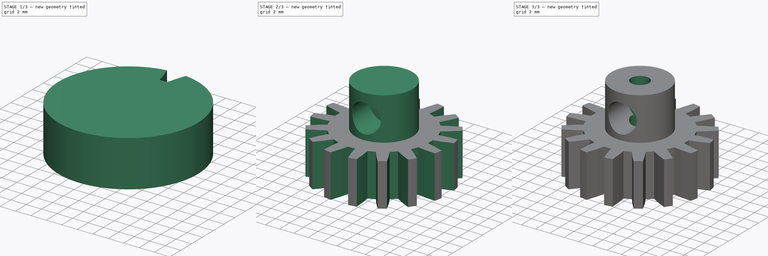
[diagram: build sequence overview — one tinted view per stage of 3, left to right]
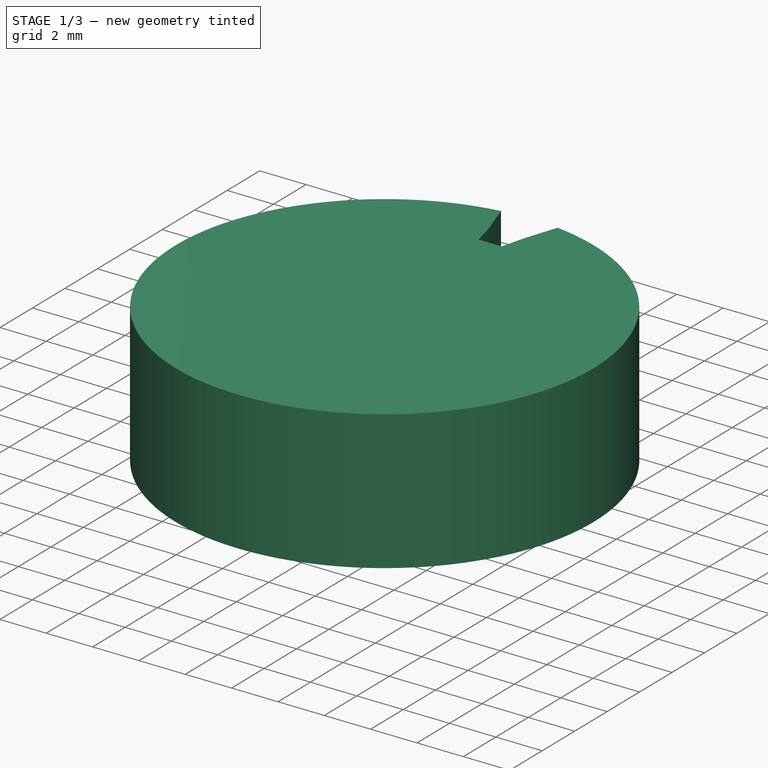
[diagram: stage 1 of 3 — iso view after this stage's code; geometry added in this stage tinted green]
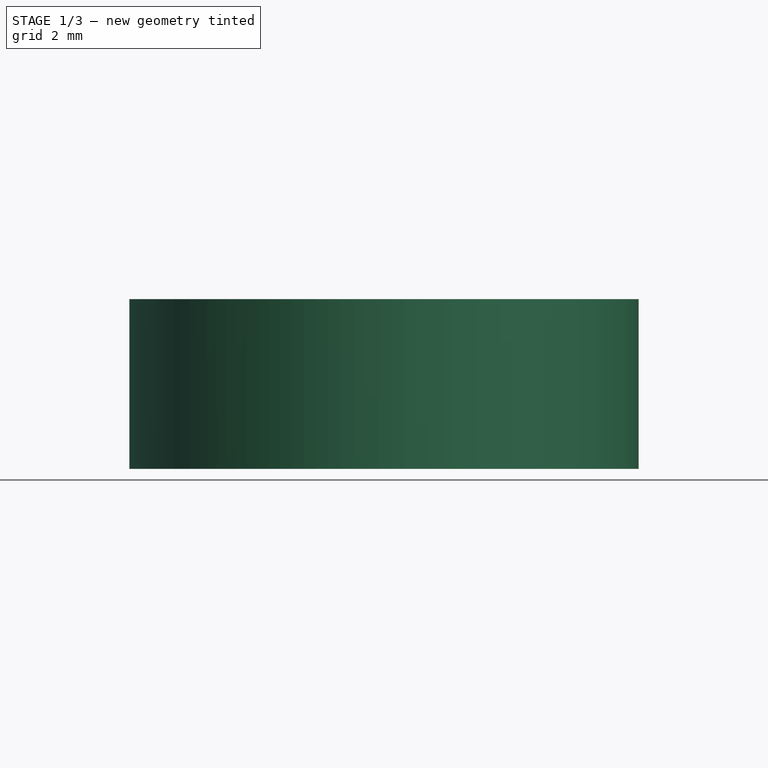
[diagram: stage 1 of 3 — front view after this stage's code; geometry added in this stage tinted green]
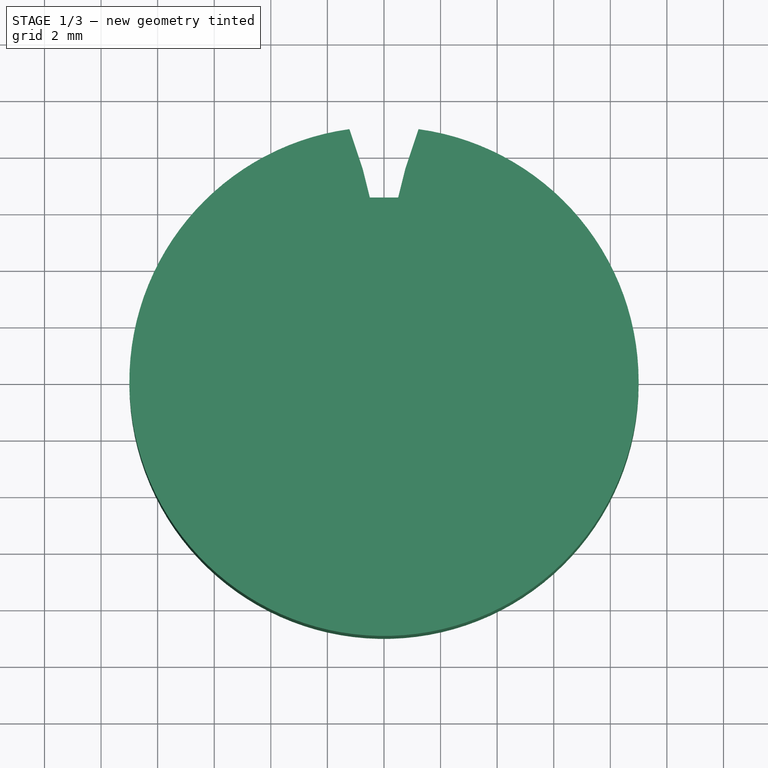
[diagram: stage 1 of 3 — top view after this stage's code; geometry added in this stage tinted green]
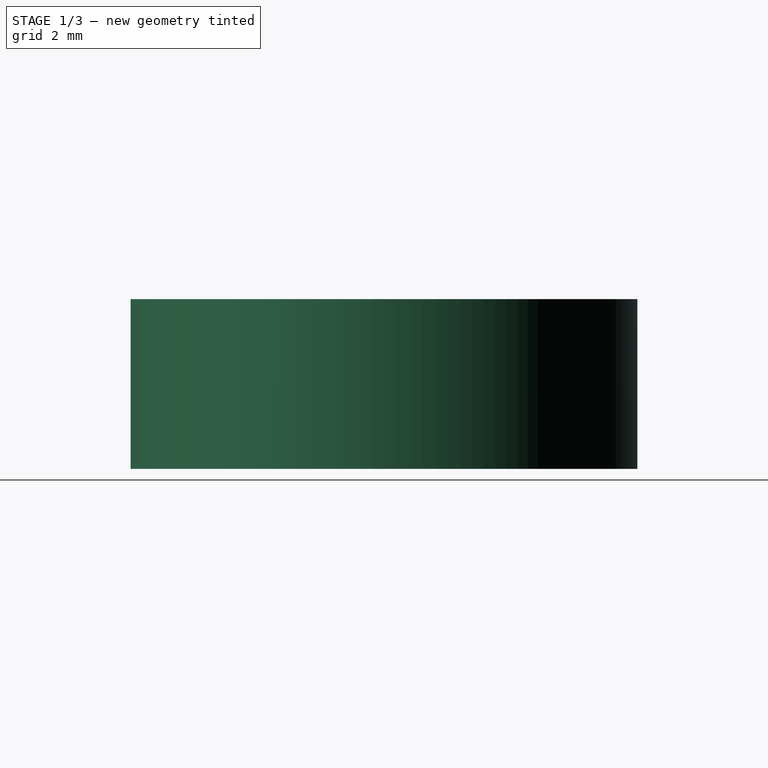
[diagram: stage 1 of 3 — right view after this stage's code; geometry added in this stage tinted green]
FCSTD DOCUMENT  (FreeCAD 0.18R4 (GitTag))
Label: Motor_Gear
License: All rights reserved
LicenseURL: http://en.wikipedia.org/wiki/All_rights_reserved
objects: Sketcher::SketchObject×5, PartDesign::Pocket×4, PartDesign::Pad×2, PartDesign::PolarPattern×1, PartDesign::Body×1
note: 19 computed .brp shape members not serialized (recipe doc carries the construction recipe); baked Part::Feature solids carry a one-line shape summary decoded from their .brp

FEATURE [Sketcher::SketchObject] Sketch
  MapMode = 5
  Support = -> [XY_Plane]
  sketch-geometry (1):
    g0: Circle CenterX=0 CenterY=0 CenterZ=0 NormalX=0 NormalY=0 NormalZ=1 AngleXU=0 Radius=9
  constraints (2):
    c: Radius(g0) = 9
    c: Coincident(g0,g-1)
FEATURE [PartDesign::Pad] Pad
  Length = 6
  Length2 = 100
  Profile = -> Sketch
  Reversed = true
  Type = 0
FEATURE [Sketcher::SketchObject] Sketch001
  ExternalGeometry = -> [Pad]
  MapMode = 5
  Support = -> [Pad]
  sketch-geometry (9):
    g0: LineSegment [constr] StartX=0 StartY=0 StartZ=0 EndX=0 EndY=9 EndZ=0
    g1: LineSegment StartX=-0.5 StartY=6.5 StartZ=0 EndX=0.5 EndY=6.5 EndZ=0
    g2: LineSegment [constr] StartX=-0.75 StartY=7.5 StartZ=0 EndX=0.75 EndY=7.5 EndZ=0
    g3: LineSegment [constr] StartX=-1.25 StartY=9 StartZ=0 EndX=1.25 EndY=9 EndZ=0
    g4: LineSegment StartX=-0.5 StartY=6.5 StartZ=0 EndX=-0.75 EndY=7.5 EndZ=0
    g5: LineSegment StartX=-0.75 StartY=7.5 StartZ=0 EndX=-1.25 EndY=9 EndZ=0
    g6: LineSegment StartX=-1.25 StartY=9 StartZ=0 EndX=1.25 EndY=9 EndZ=0
    g7: LineSegment StartX=1.25 StartY=9 StartZ=0 EndX=0.75 EndY=7.5 EndZ=0
    g8: LineSegment StartX=0.75 StartY=7.5 StartZ=0 EndX=0.5 EndY=6.5 EndZ=0
  constraints (22):
    c: PointOnObject(g0,g-2)
    c: Coincident(g0,g-1)
    c: Symmetric(g1,g1,g0)
    c: DistanceX(g1,g1) = 1
    c: Symmetric(g2,g2,g0)
    c: DistanceY(g1,g2) = 1
    c: DistanceX(g2,g2) = 1.5
    c: Symmetric(g3,g3,g0)
    c: PointOnObject(g0,g3)
    c: DistanceX(g3,g3) = 2.5
    c: Coincident(g4,g1)
    c: Coincident(g4,g5)
    c: Coincident(g4,g2)
    c: Coincident(g6,g5)
    c: Coincident(g6,g3)
    c: Coincident(g6,g3)
    c: Coincident(g6,g7)
    c: Coincident(g7,g2)
    c: Coincident(g7,g8)
    c: Coincident(g8,g1)
    c: DistanceY(g1,g0) = 2.5
    c: PointOnObject(g0,g-3)
FEATURE [Sketcher::SketchObject] Sketch002
  MapMode = 5
  sketch-geometry (1):
    g0: Circle CenterX=0 CenterY=0 CenterZ=0 NormalX=0 NormalY=0 NormalZ=1 AngleXU=0 Radius=4
  constraints (2):
    c: Coincident(g0,g-1)
    c: Radius(g0) = 4
FEATURE [Sketcher::SketchObject] Sketch004
  MapMode = 5
  Placement = pos=(0,0,0) rot=(1,0,0;1.5708rad)
  Support = -> [XZ_Plane]
  sketch-geometry (1):
    g0: Circle CenterX=0 CenterY=2.75 CenterZ=0 NormalX=0 NormalY=0 NormalZ=1 AngleXU=0 Radius=2
  constraints (3):
    c: PointOnObject(g0,g-2)
    c: Radius(g0) = 2
    c: DistanceY(g-1,g0) = 2.75
FEATURE [PartDesign::Pocket] Pocket
  BaseFeature = -> Pad
  Length = 6
  Length2 = 100
  Profile = -> Sketch001
  Type = 0
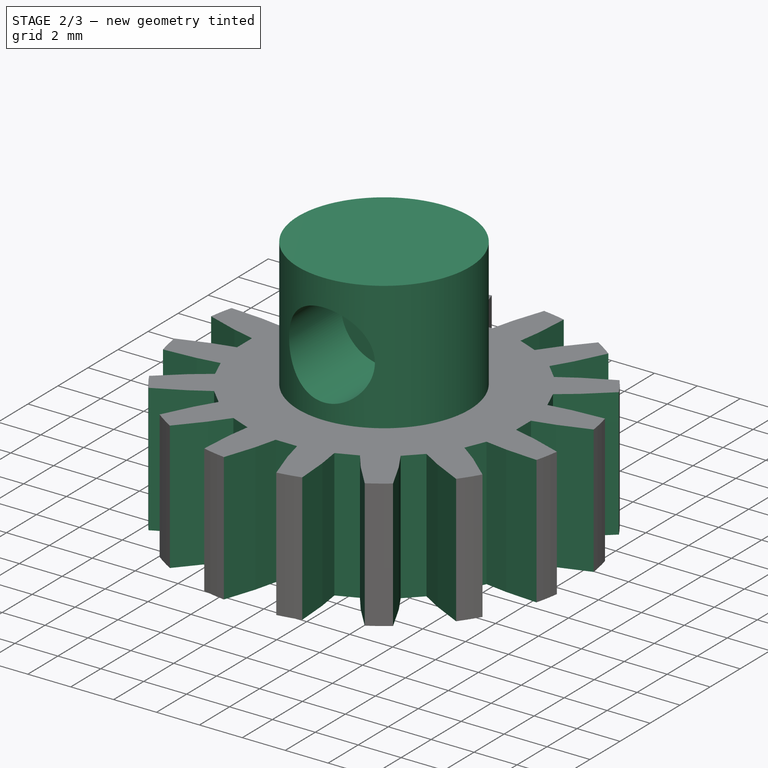
[diagram: stage 2 of 3 — iso view after this stage's code; geometry added in this stage tinted green]
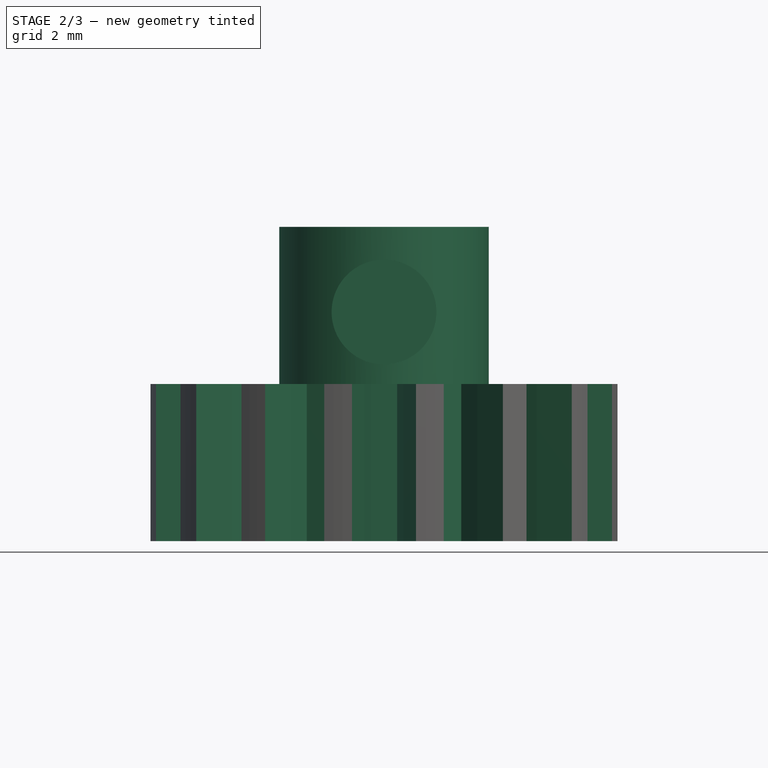
[diagram: stage 2 of 3 — front view after this stage's code; geometry added in this stage tinted green]
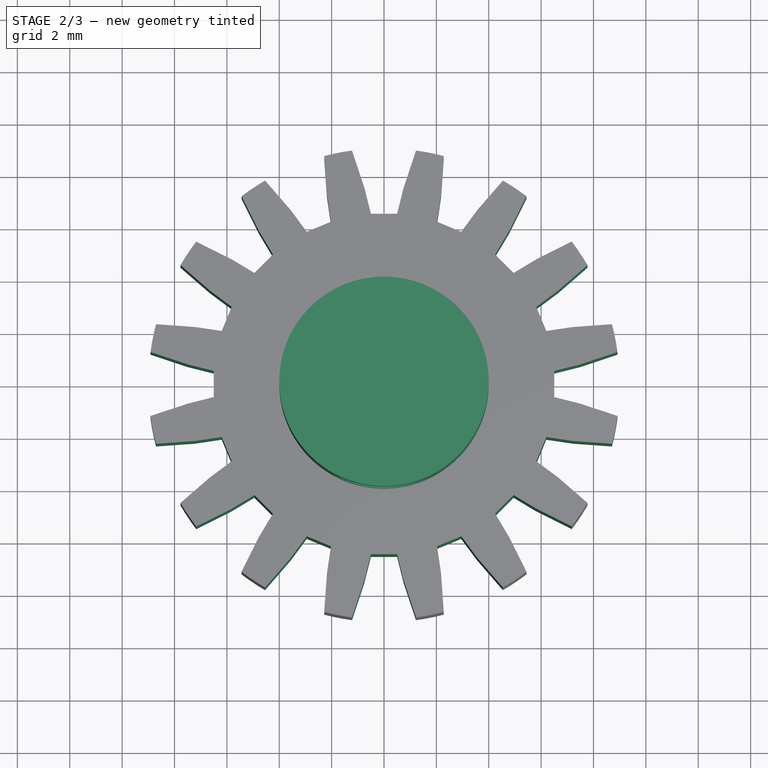
[diagram: stage 2 of 3 — top view after this stage's code; geometry added in this stage tinted green]
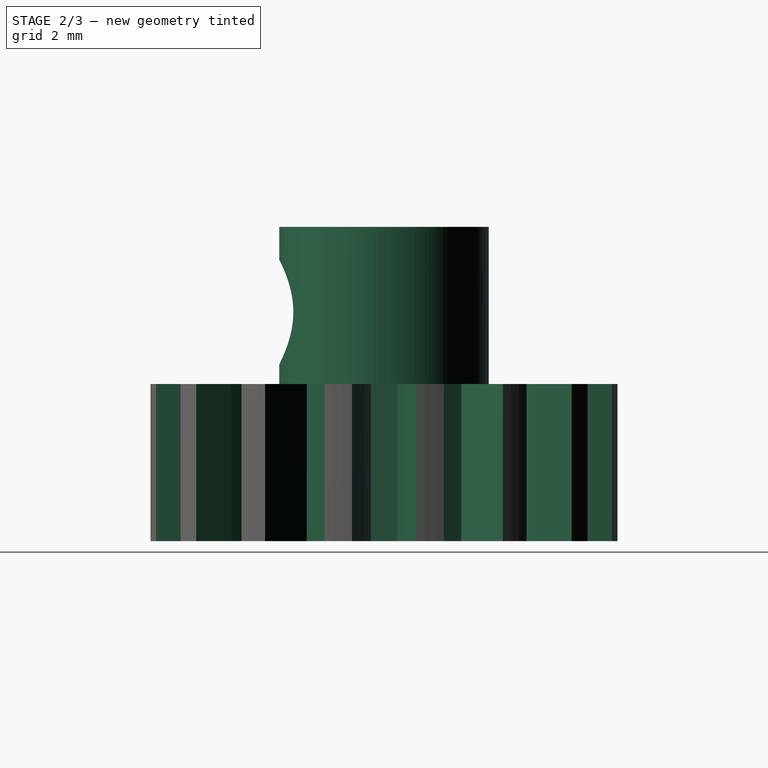
[diagram: stage 2 of 3 — right view after this stage's code; geometry added in this stage tinted green]
FEATURE [PartDesign::PolarPattern] PolarPattern
  Angle = 360
  Axis = -> Sketch001 [N_Axis]
  BaseFeature = -> Pocket
  Occurrences = 16
  Originals = -> [Pocket]
FEATURE [PartDesign::Pad] Pad001
  BaseFeature = -> PolarPattern
  Length = 6
  Length2 = 100
  Profile = -> Sketch002
  Refine = true
  Type = 0
FEATURE [Sketcher::SketchObject] Sketch003
  MapMode = 5
  Placement = pos=(0,0,6) rot=(0,0,1;0rad)
  Support = -> [Pad001]
  sketch-geometry (1):
    g0: Circle CenterX=0 CenterY=0 CenterZ=0 NormalX=0 NormalY=0 NormalZ=1 AngleXU=0 Radius=1.25
  constraints (2):
    c: Coincident(g0,g-1)
    c: Radius(g0) = 1.25
FEATURE [PartDesign::Pocket] Pocket002
  BaseFeature = -> Pad001
  Length = 5
  Length2 = 100
  Profile = -> Sketch004
  Refine = true
  Reversed = true
  Type = 0
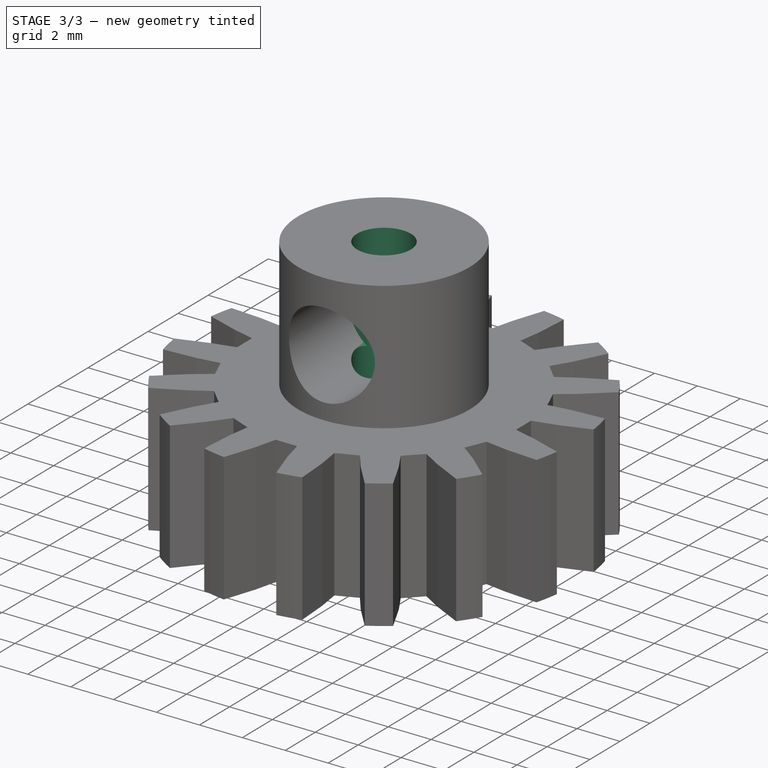
[diagram: stage 3 of 3 — iso view after this stage's code; geometry added in this stage tinted green]
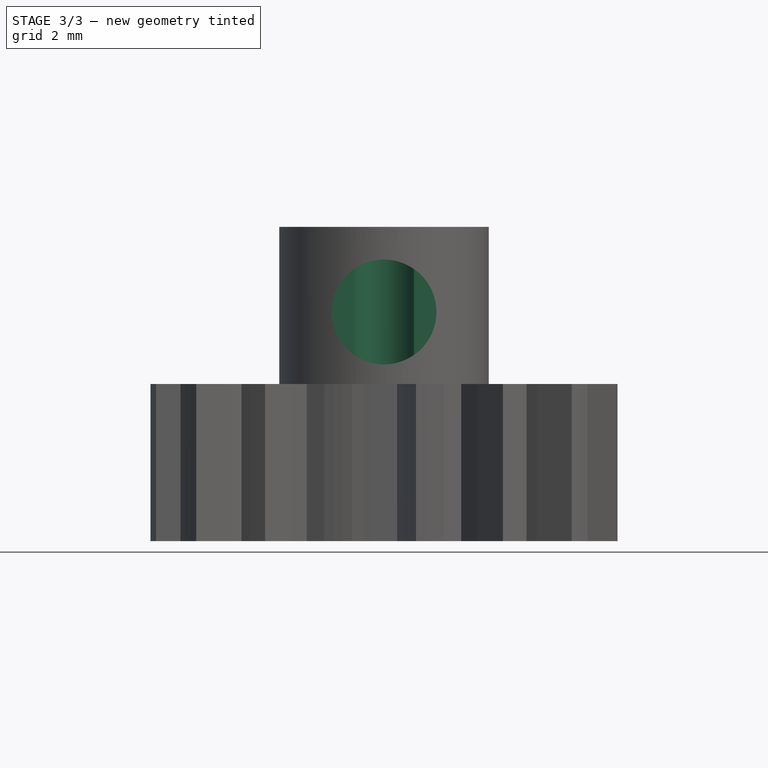
[diagram: stage 3 of 3 — front view after this stage's code; geometry added in this stage tinted green]
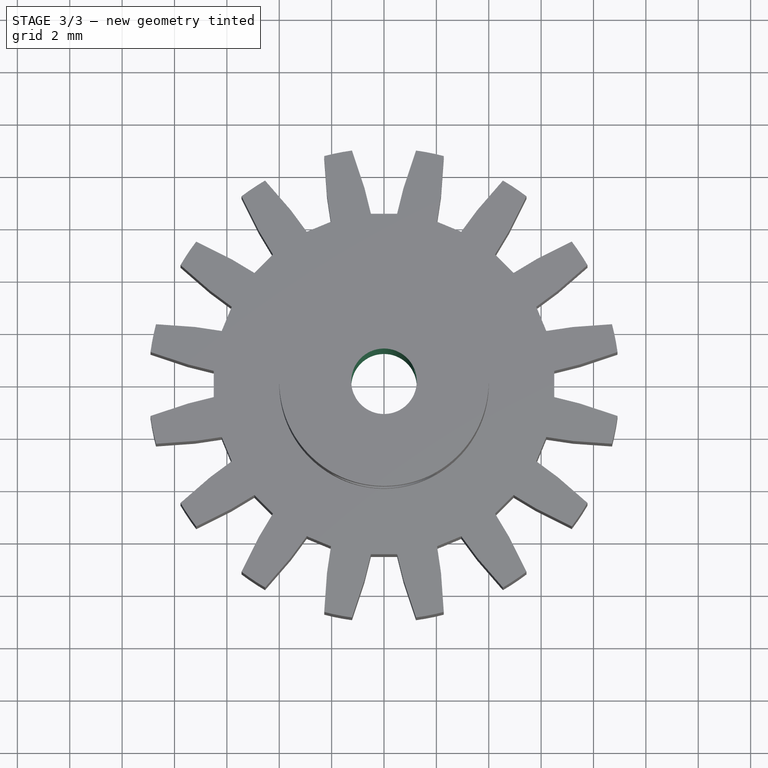
[diagram: stage 3 of 3 — top view after this stage's code; geometry added in this stage tinted green]
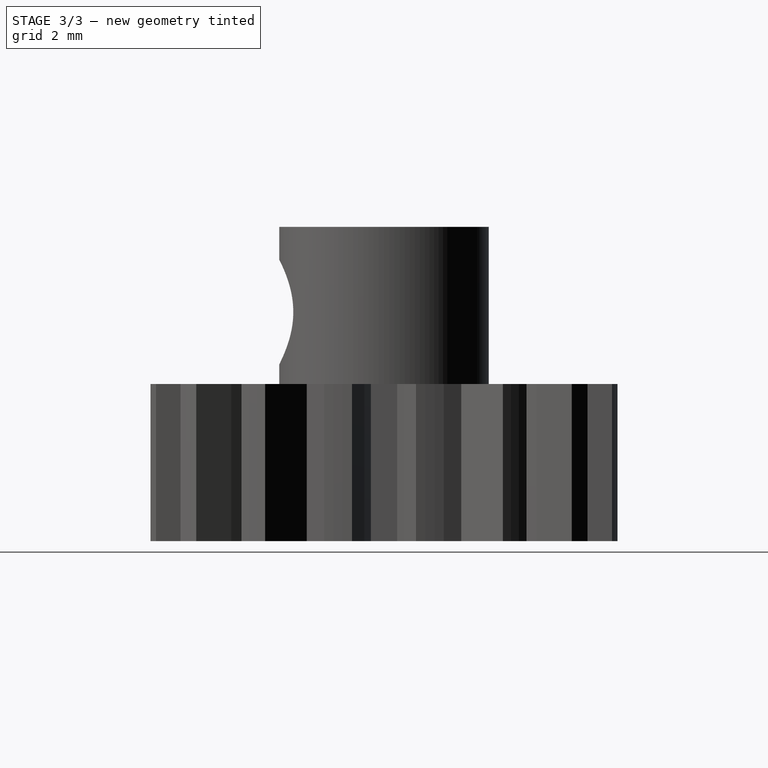
[diagram: stage 3 of 3 — right view after this stage's code; geometry added in this stage tinted green]
FEATURE [PartDesign::Pocket] Pocket003
  BaseFeature = -> Pocket002
  Length = 0.5
  Length2 = 100
  Profile = -> Sketch004
  Refine = true
  Type = 0
FEATURE [PartDesign::Pocket] Pocket004
  BaseFeature = -> Pocket003
  Length = 15
  Length2 = 100
  Profile = -> Sketch003
  Refine = true
  Type = 0
FEATURE [PartDesign::Body] Body
  Group = -> [Sketch,Pad,Sketch001,Pocket,PolarPattern,Sketch002,Pad001,Sketch003,Sketch004,Pocket002,Pocket003,Pocket004]
  Origin = -> Origin
  Tip = -> Pocket004
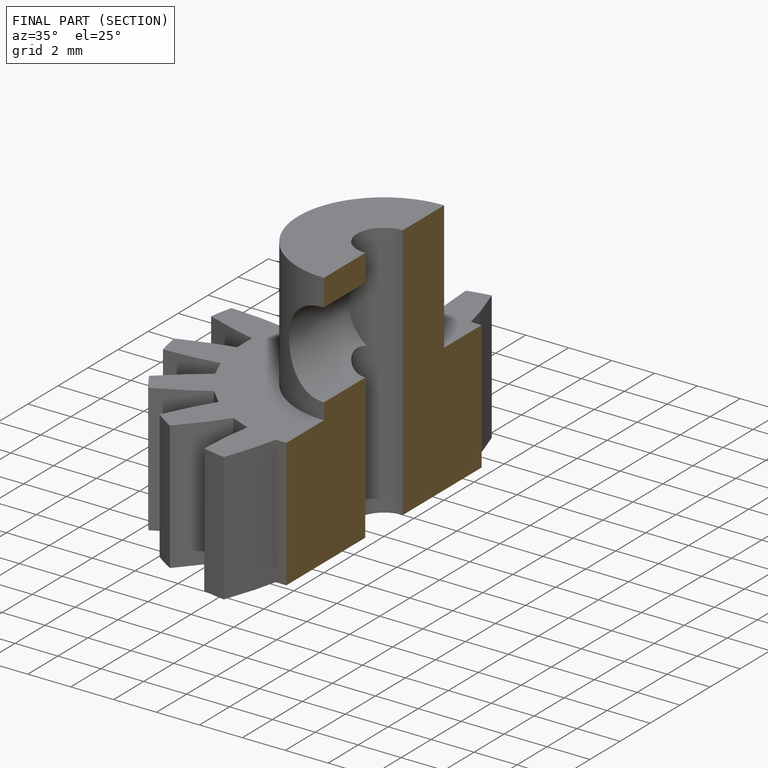
[diagram: finished part — half-section view (interior)]
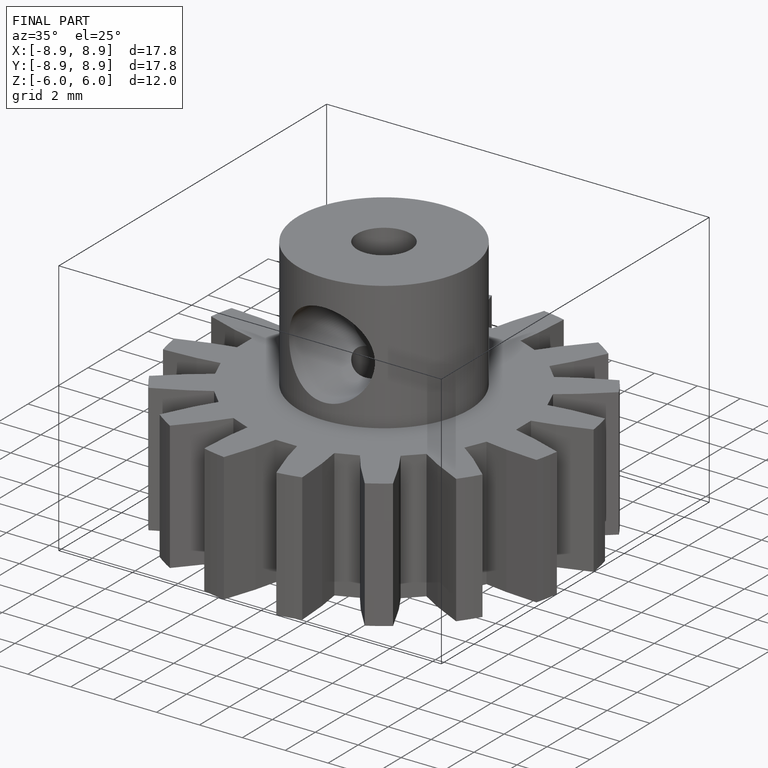
[diagram: finished part — iso view with bounding-box wireframe]
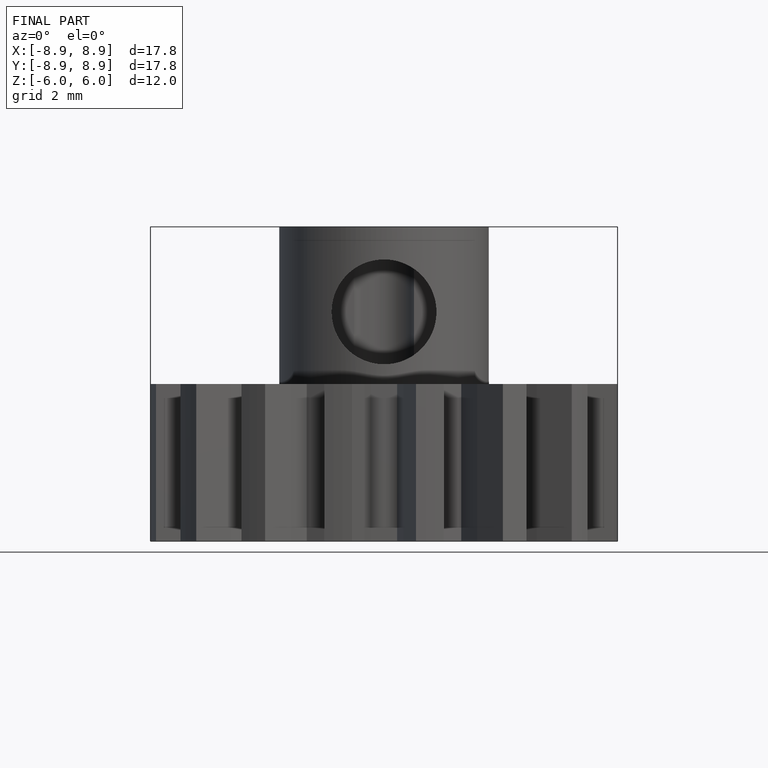
[diagram: finished part — front view with bounding-box wireframe]
